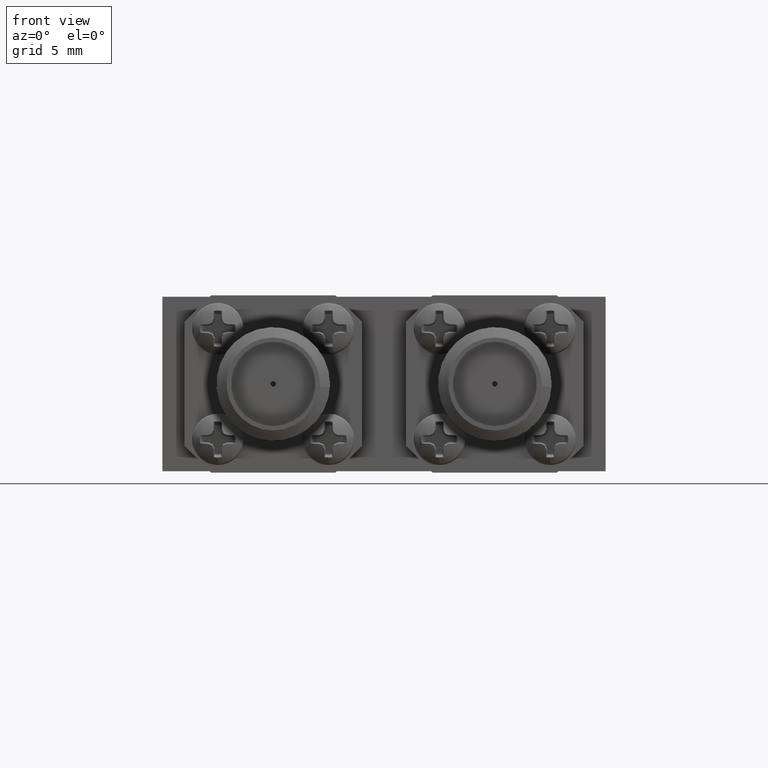
[diagram: clean part render]
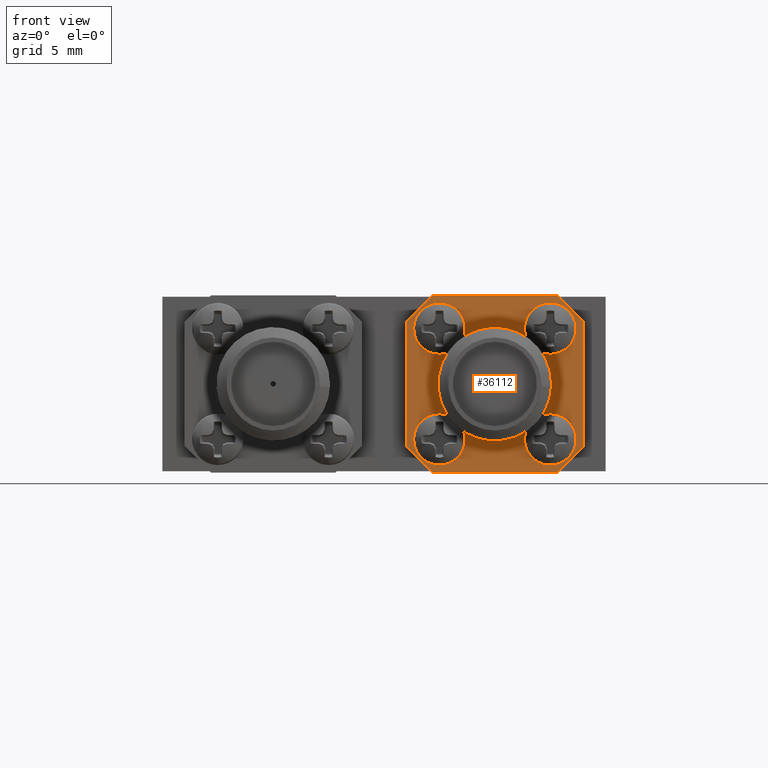
[diagram: same view with one face highlighted and labeled with its STEP entity id]
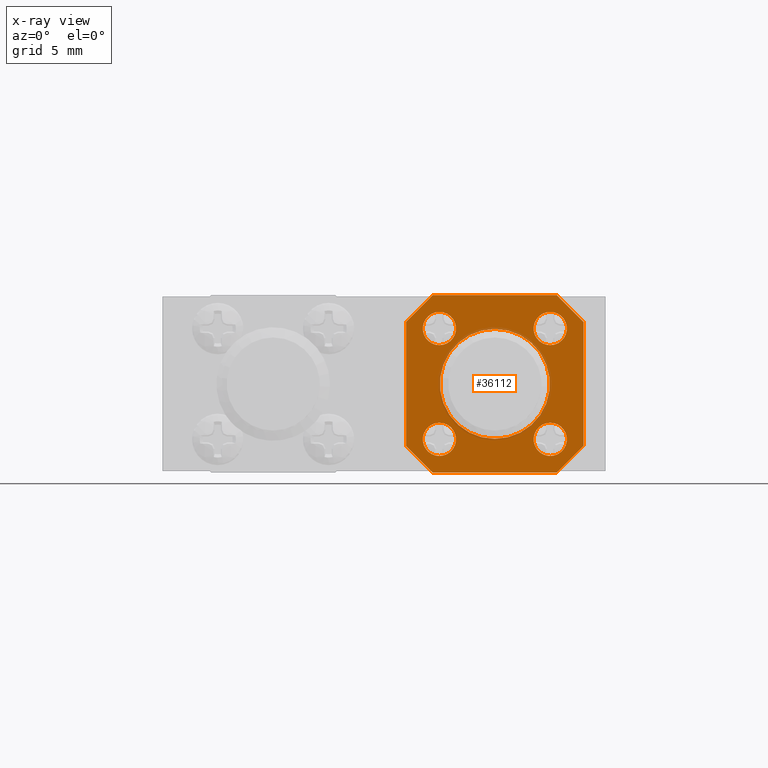
[diagram: x-ray of the same camera — body ghosted, the highlighted face saturated]
A machine part, front view. The second image highlights one B-rep face of the part: STEP entity #36112.
The next image is the same camera in x-ray: the body ghosted, the highlighted face saturated — about 4% of this face is hidden behind the body in this view.
In plain terms, the highlighted planar face has unit normal (0, -1, 0).
Its self-contained STEP definition (entity closure, byte-faithful):
#1158 = AXIS2_PLACEMENT_3D ( 'NONE', #67784, #48671, #29842 ) ;
#1217 = FACE_BOUND ( 'NONE', #46043, .T. ) ;
#1350 = AXIS2_PLACEMENT_3D ( 'NONE', #3581, #47764, #28669 ) ;
#1562 = DIRECTION ( 'NONE',  ( 0.0000000000000000000, 0.0000000000000000000, 1.000000000000000000 ) ) ;
#2915 = CIRCLE ( 'NONE', #1350, 0.03750000000000001200 ) ;
#3153 = DIRECTION ( 'NONE',  ( 0.7071067811865460200, -0.0000000000000000000, -0.7071067811865490200 ) ) ;
#3570 = AXIS2_PLACEMENT_3D ( 'NONE', #3583, #46948, #52993 ) ;
#3581 = CARTESIAN_POINT ( 'NONE',  ( 0.1249999999999997900, -0.3200000000000000600, 0.3218503937007875000 ) ) ;
#3583 = CARTESIAN_POINT ( 'NONE',  ( 0.3749999999999998300, -0.3200000000000000600, 0.07185039370078755100 ) ) ;
#4499 = CIRCLE ( 'NONE', #74501, 0.03749999999999997800 ) ;
#4667 = CARTESIAN_POINT ( 'NONE',  ( 0.3749999999999998300, -0.3200000000000000600, 0.03435039370078754600 ) ) ;
#5996 = EDGE_CURVE ( 'NONE', #20473, #13450, #78615, .T. ) ;
#6400 = VECTOR ( 'NONE', #66048, 39.37007874015748100 ) ;
#7505 = ORIENTED_EDGE ( 'NONE', *, *, #58022, .F. ) ;
#8016 = DIRECTION ( 'NONE',  ( 0.0000000000000000000, 0.0000000000000000000, 1.000000000000000000 ) ) ;
#9499 = CARTESIAN_POINT ( 'NONE',  ( 0.4499999999999999000, -0.3200000000000000600, 0.3968503937007875100 ) ) ;
#9789 = EDGE_CURVE ( 'NONE', #17287, #17216, #67562, .T. ) ;
#10441 = CARTESIAN_POINT ( 'NONE',  ( 0.04999999999999987800, -0.3200000000000000600, 0.05685039370078764200 ) ) ;
#12469 = VERTEX_POINT ( 'NONE', #46722 ) ;
#13066 = CARTESIAN_POINT ( 'NONE',  ( 0.1249999999999998100, -0.3200000000000000600, 0.03435039370078753200 ) ) ;
#13238 = EDGE_CURVE ( 'NONE', #31788, #12469, #35696, .T. ) ;
#13450 = VERTEX_POINT ( 'NONE', #19171 ) ;
#13780 = ORIENTED_EDGE ( 'NONE', *, *, #70173, .T. ) ;
#13937 = DIRECTION ( 'NONE',  ( 0.0000000000000000000, -1.000000000000000000, 0.0000000000000000000 ) ) ;
#14548 = AXIS2_PLACEMENT_3D ( 'NONE', #63655, #13937, #26260 ) ;
#14942 = AXIS2_PLACEMENT_3D ( 'NONE', #44272, #50044, #75149 ) ;
#16510 = CIRCLE ( 'NONE', #71397, 0.03750000000000001200 ) ;
#16968 = EDGE_LOOP ( 'NONE', ( #53794, #44902 ) ) ;
#17216 = VERTEX_POINT ( 'NONE', #78580 ) ;
#17287 = VERTEX_POINT ( 'NONE', #61069 ) ;
#17419 = VERTEX_POINT ( 'NONE', #54843 ) ;
#18202 = LINE ( 'NONE', #33391, #24113 ) ;
#18240 = VERTEX_POINT ( 'NONE', #4667 ) ;
#18297 = EDGE_CURVE ( 'NONE', #46914, #17419, #2915, .T. ) ;
#19171 = CARTESIAN_POINT ( 'NONE',  ( 0.04999999999999987800, -0.3200000000000000600, 0.3368503937007874500 ) ) ;
#19210 = LINE ( 'NONE', #28536, #62220 ) ;
#20157 = CARTESIAN_POINT ( 'NONE',  ( 0.04999999999999987800, -0.3200000000000000600, -0.003149606299212572800 ) ) ;
#20473 = VERTEX_POINT ( 'NONE', #33713 ) ;
#20504 = VERTEX_POINT ( 'NONE', #57740 ) ;
#21023 = CIRCLE ( 'NONE', #49611, 0.03750000000000001200 ) ;
#21690 = ORIENTED_EDGE ( 'NONE', *, *, #53266, .T. ) ;
#21801 = CARTESIAN_POINT ( 'NONE',  ( 0.1249999999999998100, -0.3200000000000000600, 0.1093503937007874900 ) ) ;
#22938 = CARTESIAN_POINT ( 'NONE',  ( 0.3749999999999998300, -0.3200000000000000600, 0.3593503937007875300 ) ) ;
#23002 = LINE ( 'NONE', #9499, #6400 ) ;
#23140 = ORIENTED_EDGE ( 'NONE', *, *, #13238, .F. ) ;
#23528 = VERTEX_POINT ( 'NONE', #22938 ) ;
#23754 = CIRCLE ( 'NONE', #3570, 0.03750000000000001200 ) ;
#24113 = VECTOR ( 'NONE', #46474, 39.37007874015748100 ) ;
#24682 = VERTEX_POINT ( 'NONE', #21801 ) ;
#26260 = DIRECTION ( 'NONE',  ( 0.0000000000000000000, 0.0000000000000000000, 1.000000000000000000 ) ) ;
#26562 = FACE_BOUND ( 'NONE', #31880, .T. ) ;
#26715 = DIRECTION ( 'NONE',  ( 0.0000000000000000000, -1.000000000000000000, 0.0000000000000000000 ) ) ;
#27106 = DIRECTION ( 'NONE',  ( 0.0000000000000000000, 0.0000000000000000000, 1.000000000000000000 ) ) ;
#27223 = DIRECTION ( 'NONE',  ( 0.0000000000000000000, 0.0000000000000000000, 1.000000000000000000 ) ) ;
#27848 = CARTESIAN_POINT ( 'NONE',  ( 0.3899999999999997900, -0.3200000000000000600, -0.003149606299212538500 ) ) ;
#28536 = CARTESIAN_POINT ( 'NONE',  ( 0.04999999999999987800, -0.3200000000000000600, 0.3968503937007874500 ) ) ;
#28669 = DIRECTION ( 'NONE',  ( 0.0000000000000000000, 0.0000000000000000000, 1.000000000000000000 ) ) ;
#29075 = VECTOR ( 'NONE', #47099, 39.37007874015748100 ) ;
#29842 = DIRECTION ( 'NONE',  ( 0.0000000000000000000, 0.0000000000000000000, 1.000000000000000000 ) ) ;
#31449 = FACE_BOUND ( 'NONE', #59958, .T. ) ;
#31669 = CARTESIAN_POINT ( 'NONE',  ( 0.3749999999999998300, -0.3200000000000000600, 0.07185039370078755100 ) ) ;
#31788 = VERTEX_POINT ( 'NONE', #76919 ) ;
#31880 = EDGE_LOOP ( 'NONE', ( #23140, #7505 ) ) ;
#32064 = ORIENTED_EDGE ( 'NONE', *, *, #53867, .T. ) ;
#32190 = EDGE_CURVE ( 'NONE', #17419, #46914, #32805, .T. ) ;
#32805 = CIRCLE ( 'NONE', #76523, 0.03750000000000001200 ) ;
#33054 = ORIENTED_EDGE ( 'NONE', *, *, #61666, .F. ) ;
#33077 = EDGE_CURVE ( 'NONE', #48126, #24682, #4499, .T. ) ;
#33391 = CARTESIAN_POINT ( 'NONE',  ( 0.04999999999999987800, -0.3200000000000000600, 0.3968503937007874500 ) ) ;
#33400 = DIRECTION ( 'NONE',  ( 0.0000000000000000000, -1.000000000000000000, 0.0000000000000000000 ) ) ;
#33713 = CARTESIAN_POINT ( 'NONE',  ( 0.1100000000000000300, -0.3200000000000000600, 0.3968503937007874500 ) ) ;
#33809 = VERTEX_POINT ( 'NONE', #10441 ) ;
#33993 = EDGE_CURVE ( 'NONE', #44400, #23528, #77537, .T. ) ;
#34049 = DIRECTION ( 'NONE',  ( 0.0000000000000000000, 0.0000000000000000000, 1.000000000000000000 ) ) ;
#34333 = ORIENTED_EDGE ( 'NONE', *, *, #42317, .T. ) ;
#35696 = CIRCLE ( 'NONE', #1158, 0.1240000000000000000 ) ;
#36112 = ADVANCED_FACE ( 'NONE', ( #43162, #51957, #31449, #58731, #1217, #26562 ), #51975, .T. ) ;
#36987 = VERTEX_POINT ( 'NONE', #27848 ) ;
#38398 = ORIENTED_EDGE ( 'NONE', *, *, #68778, .T. ) ;
#39540 = CARTESIAN_POINT ( 'NONE',  ( 0.1249999999999998100, -0.3200000000000000600, 0.07185039370078751000 ) ) ;
#41161 = CARTESIAN_POINT ( 'NONE',  ( 0.3749999999999998300, -0.3200000000000000600, 0.2843503937007875200 ) ) ;
#41177 = VERTEX_POINT ( 'NONE', #49994 ) ;
#41904 = ORIENTED_EDGE ( 'NONE', *, *, #33993, .F. ) ;
#42317 = EDGE_CURVE ( 'NONE', #17216, #20473, #18202, .T. ) ;
#43162 = FACE_OUTER_BOUND ( 'NONE', #49823, .T. ) ;
#43207 = CIRCLE ( 'NONE', #50260, 0.1240000000000000000 ) ;
#43259 = EDGE_CURVE ( 'NONE', #23528, #44400, #21023, .T. ) ;
#43911 = DIRECTION ( 'NONE',  ( 0.0000000000000000000, -1.000000000000000000, 0.0000000000000000000 ) ) ;
#44272 = CARTESIAN_POINT ( 'NONE',  ( 0.3749999999999998300, -0.3200000000000000600, 0.3218503937007875500 ) ) ;
#44400 = VERTEX_POINT ( 'NONE', #41161 ) ;
#44445 = DIRECTION ( 'NONE',  ( 1.000000000000000000, 0.0000000000000000000, 8.537024980200821300E-017 ) ) ;
#44651 = DIRECTION ( 'NONE',  ( 0.0000000000000000000, -1.000000000000000000, 0.0000000000000000000 ) ) ;
#44902 = ORIENTED_EDGE ( 'NONE', *, *, #33077, .F. ) ;
#44915 = CIRCLE ( 'NONE', #14548, 0.03749999999999997800 ) ;
#45413 = CARTESIAN_POINT ( 'NONE',  ( 0.1249999999999997900, -0.3200000000000000600, 0.3218503937007875000 ) ) ;
#45698 = VECTOR ( 'NONE', #44445, 39.37007874015748100 ) ;
#46043 = EDGE_LOOP ( 'NONE', ( #65588, #75467 ) ) ;
#46052 = ORIENTED_EDGE ( 'NONE', *, *, #79688, .F. ) ;
#46474 = DIRECTION ( 'NONE',  ( -1.000000000000000000, 0.0000000000000000000, -1.707404996040164300E-016 ) ) ;
#46722 = CARTESIAN_POINT ( 'NONE',  ( 0.2499999999999998300, -0.3200000000000000600, 0.3208503937007875000 ) ) ;
#46914 = VERTEX_POINT ( 'NONE', #78917 ) ;
#46948 = DIRECTION ( 'NONE',  ( 0.0000000000000000000, -1.000000000000000000, 0.0000000000000000000 ) ) ;
#47099 = DIRECTION ( 'NONE',  ( 0.7071067811865491300, -0.0000000000000000000, 0.7071067811865459100 ) ) ;
#47764 = DIRECTION ( 'NONE',  ( 0.0000000000000000000, -1.000000000000000000, 0.0000000000000000000 ) ) ;
#48126 = VERTEX_POINT ( 'NONE', #13066 ) ;
#48671 = DIRECTION ( 'NONE',  ( 0.0000000000000000000, -1.000000000000000000, 0.0000000000000000000 ) ) ;
#49611 = AXIS2_PLACEMENT_3D ( 'NONE', #71489, #26715, #34049 ) ;
#49823 = EDGE_LOOP ( 'NONE', ( #34333, #77088, #13780, #32064, #21690, #57985, #38398, #74226 ) ) ;
#49994 = CARTESIAN_POINT ( 'NONE',  ( 0.3749999999999998300, -0.3200000000000000600, 0.1093503937007875600 ) ) ;
#50044 = DIRECTION ( 'NONE',  ( 0.0000000000000000000, -1.000000000000000000, 0.0000000000000000000 ) ) ;
#50260 = AXIS2_PLACEMENT_3D ( 'NONE', #69543, #44651, #1562 ) ;
#51957 = FACE_BOUND ( 'NONE', #73476, .T. ) ;
#51975 = PLANE ( 'NONE',  #70592 ) ;
#52529 = LINE ( 'NONE', #20157, #45698 ) ;
#52993 = DIRECTION ( 'NONE',  ( 0.0000000000000000000, 0.0000000000000000000, 1.000000000000000000 ) ) ;
#53266 = EDGE_CURVE ( 'NONE', #68820, #36987, #52529, .T. ) ;
#53794 = ORIENTED_EDGE ( 'NONE', *, *, #65475, .F. ) ;
#53867 = EDGE_CURVE ( 'NONE', #33809, #68820, #72054, .T. ) ;
#54843 = CARTESIAN_POINT ( 'NONE',  ( 0.1249999999999997900, -0.3200000000000000600, 0.2843503937007874600 ) ) ;
#55212 = VECTOR ( 'NONE', #79069, 39.37007874015748900 ) ;
#57740 = CARTESIAN_POINT ( 'NONE',  ( 0.4499999999999999000, -0.3200000000000000600, 0.05685039370078730200 ) ) ;
#57985 = ORIENTED_EDGE ( 'NONE', *, *, #62420, .T. ) ;
#58022 = EDGE_CURVE ( 'NONE', #12469, #31788, #43207, .T. ) ;
#58731 = FACE_BOUND ( 'NONE', #16968, .T. ) ;
#59695 = VECTOR ( 'NONE', #71974, 39.37007874015748100 ) ;
#59958 = EDGE_LOOP ( 'NONE', ( #33054, #46052 ) ) ;
#60444 = DIRECTION ( 'NONE',  ( 0.0000000000000000000, 0.0000000000000000000, -1.000000000000000000 ) ) ;
#61069 = CARTESIAN_POINT ( 'NONE',  ( 0.4499999999999999000, -0.3200000000000000600, 0.3368503937007872300 ) ) ;
#61666 = EDGE_CURVE ( 'NONE', #41177, #18240, #16510, .T. ) ;
#62220 = VECTOR ( 'NONE', #60444, 39.37007874015748100 ) ;
#62294 = LINE ( 'NONE', #72497, #29075 ) ;
#62420 = EDGE_CURVE ( 'NONE', #36987, #20504, #62294, .T. ) ;
#63655 = CARTESIAN_POINT ( 'NONE',  ( 0.1249999999999998100, -0.3200000000000000600, 0.07185039370078751000 ) ) ;
#65062 = DIRECTION ( 'NONE',  ( 0.0000000000000000000, -1.000000000000000000, 0.0000000000000000000 ) ) ;
#65475 = EDGE_CURVE ( 'NONE', #24682, #48126, #44915, .T. ) ;
#65588 = ORIENTED_EDGE ( 'NONE', *, *, #18297, .F. ) ;
#66048 = DIRECTION ( 'NONE',  ( 0.0000000000000000000, 0.0000000000000000000, 1.000000000000000000 ) ) ;
#67562 = LINE ( 'NONE', #77147, #59695 ) ;
#67784 = CARTESIAN_POINT ( 'NONE',  ( 0.2499999999999998300, -0.3200000000000000600, 0.1968503937007874700 ) ) ;
#68248 = DIRECTION ( 'NONE',  ( 0.0000000000000000000, 0.0000000000000000000, 1.000000000000000000 ) ) ;
#68778 = EDGE_CURVE ( 'NONE', #20504, #17287, #23002, .T. ) ;
#68820 = VERTEX_POINT ( 'NONE', #73663 ) ;
#69543 = CARTESIAN_POINT ( 'NONE',  ( 0.2499999999999998300, -0.3200000000000000600, 0.1968503937007874700 ) ) ;
#70173 = EDGE_CURVE ( 'NONE', #13450, #33809, #19210, .T. ) ;
#70592 = AXIS2_PLACEMENT_3D ( 'NONE', #77330, #65062, #27106 ) ;
#70682 = DIRECTION ( 'NONE',  ( 0.0000000000000000000, -1.000000000000000000, 0.0000000000000000000 ) ) ;
#71397 = AXIS2_PLACEMENT_3D ( 'NONE', #31669, #43911, #68248 ) ;
#71489 = CARTESIAN_POINT ( 'NONE',  ( 0.3749999999999998300, -0.3200000000000000600, 0.3218503937007875500 ) ) ;
#71949 = CARTESIAN_POINT ( 'NONE',  ( 0.07999999999999951600, -0.3200000000000000600, 0.02685039370078789300 ) ) ;
#71974 = DIRECTION ( 'NONE',  ( -0.7071067811865466800, 0.0000000000000000000, 0.7071067811865483500 ) ) ;
#72054 = LINE ( 'NONE', #71949, #79846 ) ;
#72497 = CARTESIAN_POINT ( 'NONE',  ( 0.4199999999999994800, -0.3200000000000000600, 0.02685039370078700500 ) ) ;
#73352 = CARTESIAN_POINT ( 'NONE',  ( 0.08000000000000016800, -0.3200000000000000600, 0.3668503937007877000 ) ) ;
#73476 = EDGE_LOOP ( 'NONE', ( #77411, #41904 ) ) ;
#73663 = CARTESIAN_POINT ( 'NONE',  ( 0.1099999999999998300, -0.3200000000000000600, -0.003149606299212572800 ) ) ;
#74226 = ORIENTED_EDGE ( 'NONE', *, *, #9789, .T. ) ;
#74501 = AXIS2_PLACEMENT_3D ( 'NONE', #39540, #70682, #27223 ) ;
#75149 = DIRECTION ( 'NONE',  ( 0.0000000000000000000, 0.0000000000000000000, 1.000000000000000000 ) ) ;
#75467 = ORIENTED_EDGE ( 'NONE', *, *, #32190, .F. ) ;
#76523 = AXIS2_PLACEMENT_3D ( 'NONE', #45413, #33400, #8016 ) ;
#76919 = CARTESIAN_POINT ( 'NONE',  ( 0.2499999999999998300, -0.3200000000000000600, 0.07285039370078748300 ) ) ;
#77088 = ORIENTED_EDGE ( 'NONE', *, *, #5996, .T. ) ;
#77147 = CARTESIAN_POINT ( 'NONE',  ( 0.4199999999999999800, -0.3200000000000000600, 0.3668503937007872600 ) ) ;
#77330 = CARTESIAN_POINT ( 'NONE',  ( 0.2499999999999998300, -0.3200000000000000600, 0.1968503937007874700 ) ) ;
#77411 = ORIENTED_EDGE ( 'NONE', *, *, #43259, .F. ) ;
#77537 = CIRCLE ( 'NONE', #14942, 0.03750000000000001200 ) ;
#78580 = CARTESIAN_POINT ( 'NONE',  ( 0.3899999999999997900, -0.3200000000000000600, 0.3968503937007875100 ) ) ;
#78615 = LINE ( 'NONE', #73352, #55212 ) ;
#78917 = CARTESIAN_POINT ( 'NONE',  ( 0.1249999999999997900, -0.3200000000000000600, 0.3593503937007874700 ) ) ;
#79069 = DIRECTION ( 'NONE',  ( -0.7071067811865486800, -0.0000000000000000000, -0.7071067811865462400 ) ) ;
#79688 = EDGE_CURVE ( 'NONE', #18240, #41177, #23754, .T. ) ;
#79846 = VECTOR ( 'NONE', #3153, 39.37007874015748100 ) ;